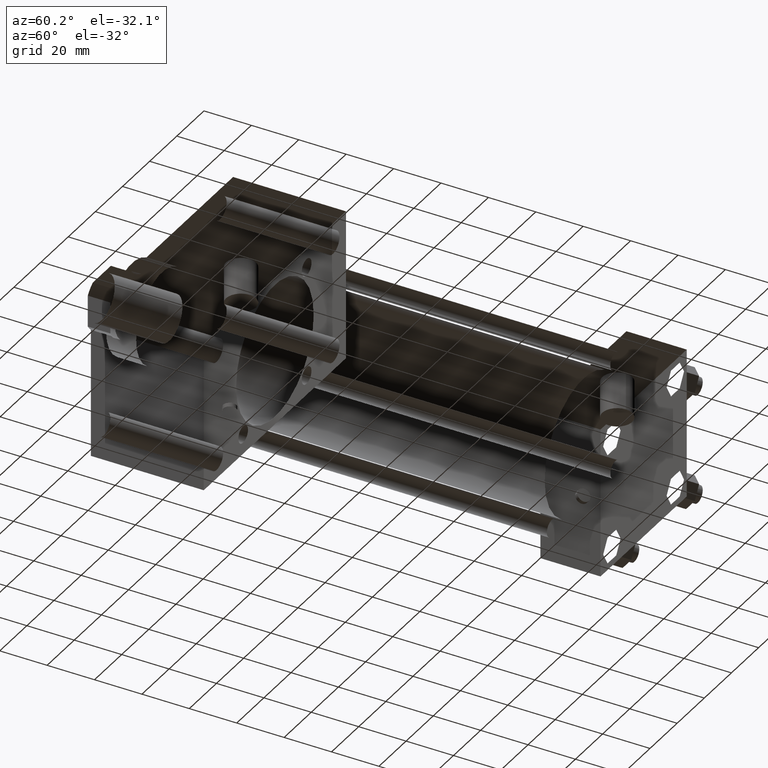
[diagram: clean part render]
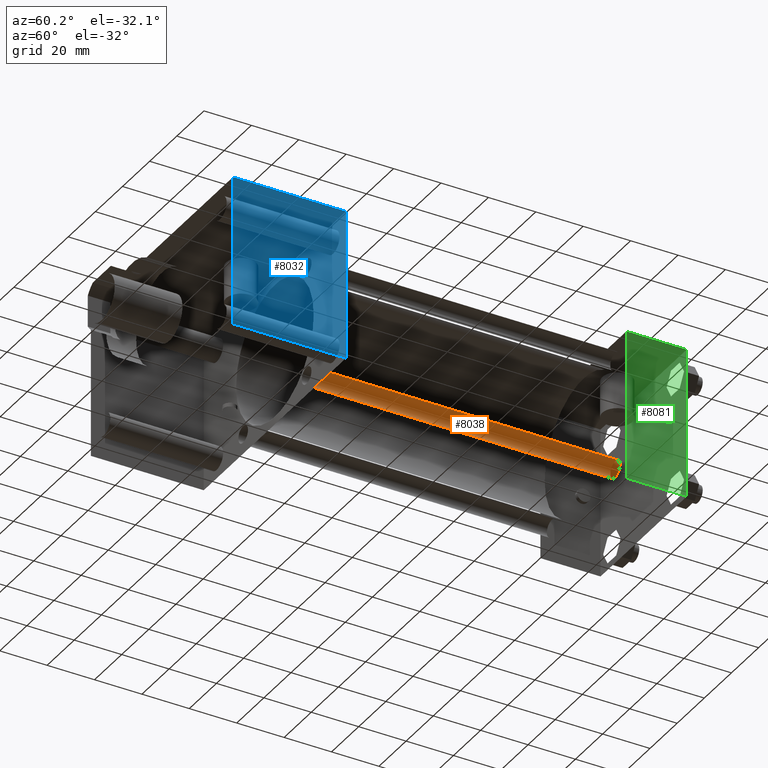
[diagram: same view with three faces highlighted in distinct colors, each labeled with its STEP entity id]
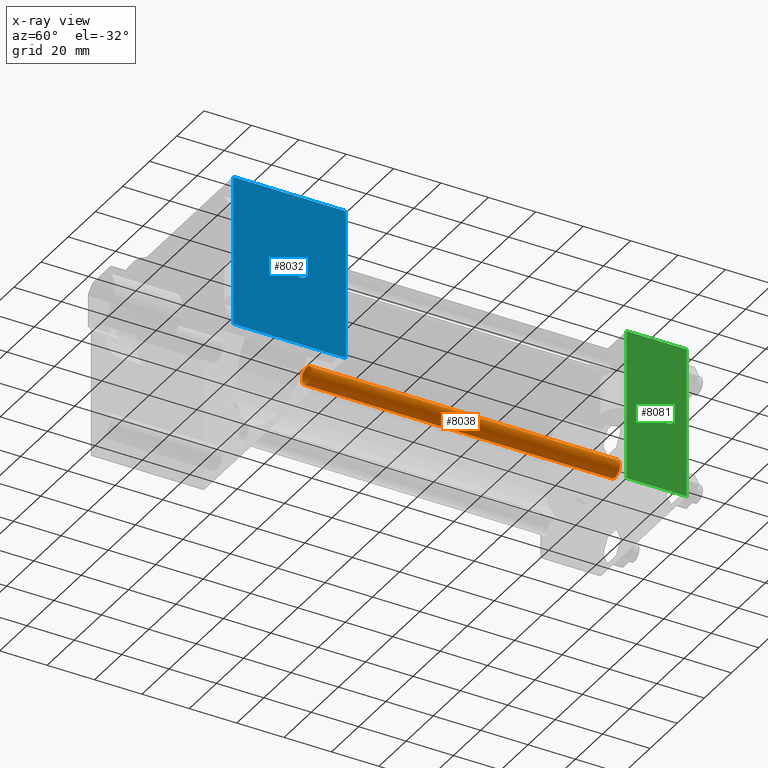
[diagram: x-ray of the same camera — body ghosted, the three highlighted faces saturated]
A machine part, auxiliary view with three faces highlighted in distinct colors.
The next image is the same camera in x-ray (body ghosted, the three faces saturated) — at least one of them is partly hidden behind the body in this view.
Their STEP definitions:

[orange] entity #8038 — the highlighted cylindrical surface (bore or boss wall) has radius 3.5687 mm, axis along (0, -1, 0).
#916=EDGE_CURVE('',#922,#922,#917,.T.);
#917=CIRCLE('',#918,3.568700000E+000);
#918=AXIS2_PLACEMENT_3D('',#919,#920,#921);
#919=CARTESIAN_POINT('',(2.336800000E+001,7.302500000E+001,-2.336800000E+001));
#920=DIRECTION('',(0.0E+000,1.0E+000,0.0E+000));
#921=DIRECTION('',(0.0E+000,0.0E+000,1.0E+000));
#922=VERTEX_POINT('',#923);
#923=CARTESIAN_POINT('',(2.336800000E+001,7.302500000E+001,-1.979930000E+001));
#1086=FACE_OUTER_BOUND('',#1088,.T.);
#1087=FACE_BOUND('',#1089,.T.);
#1088=EDGE_LOOP('',(#1090));
#1089=EDGE_LOOP('',(#1091));
#1090=ORIENTED_EDGE('',*,*,#1140,.F.);
#1091=ORIENTED_EDGE('',*,*,#916,.T.);
#1092=CYLINDRICAL_SURFACE('',#1093,3.568700000E+000);
#1093=AXIS2_PLACEMENT_3D('',#1094,#1095,#1096);
#1094=CARTESIAN_POINT('',(2.336800000E+001,2.032000000E+002,-2.336800000E+001));
#1095=DIRECTION('',(0.0E+000,-1.0E+000,0.0E+000));
#1096=DIRECTION('',(0.0E+000,0.0E+000,-1.0E+000));
#1140=EDGE_CURVE('',#1146,#1146,#1141,.T.);
#1141=CIRCLE('',#1142,3.568700000E+000);
#1142=AXIS2_PLACEMENT_3D('',#1143,#1144,#1145);
#1143=CARTESIAN_POINT('',(2.336800000E+001,2.032000000E+002,-2.336800000E+001));
#1144=DIRECTION('',(0.0E+000,1.0E+000,0.0E+000));
#1145=DIRECTION('',(1.0E+000,0.0E+000,0.0E+000));
#1146=VERTEX_POINT('',#1147);
#1147=CARTESIAN_POINT('',(2.693670000E+001,2.032000000E+002,-2.336800000E+001));
#8038=ADVANCED_FACE('',(#1086,#1087),#1092,.T.);

[blue] entity #8032 — the highlighted planar face has unit normal (1, 0, 0).
#526=EDGE_CURVE('',#532,#532,#527,.T.);
#527=CIRCLE('',#528,2.778125000E+000);
#528=AXIS2_PLACEMENT_3D('',#529,#530,#531);
#529=CARTESIAN_POINT('',(5.238750000E+001,5.397500000E+001,0.000000000E+000));
#530=DIRECTION('',(-1.0E+000,0.0E+000,0.0E+000));
#531=DIRECTION('',(0.0E+000,1.0E+000,0.0E+000));
#532=VERTEX_POINT('',#533);
#533=CARTESIAN_POINT('',(5.238750000E+001,5.675312500E+001,0.000000000E+000));
#744=VERTEX_POINT('',#746);
#746=CARTESIAN_POINT('',(5.238750000E+001,2.540000000E+001,-3.175000000E+001));
#747=EDGE_CURVE('',#744,#752,#748,.T.);
#748=LINE('',#749,#750);
#749=CARTESIAN_POINT('',(5.238750000E+001,2.540000000E+001,-3.175000000E+001));
#750=VECTOR('',#751,1.0E+000);
#751=DIRECTION('',(0.0E+000,0.0E+000,1.0E+000));
#752=VERTEX_POINT('',#753);
#753=CARTESIAN_POINT('',(5.238750000E+001,2.540000000E+001,3.175000000E+001));
#786=EDGE_CURVE('',#791,#752,#787,.T.);
#787=LINE('',#788,#789);
#788=CARTESIAN_POINT('',(5.238750000E+001,7.302500000E+001,3.175000000E+001));
#789=VECTOR('',#790,1.0E+000);
#790=DIRECTION('',(0.0E+000,-1.0E+000,0.0E+000));
#791=VERTEX_POINT('',#792);
#792=CARTESIAN_POINT('',(5.238750000E+001,7.302500000E+001,3.175000000E+001));
#812=EDGE_CURVE('',#817,#744,#813,.T.);
#813=LINE('',#814,#815);
#814=CARTESIAN_POINT('',(5.238750000E+001,7.302500000E+001,-3.175000000E+001));
#815=VECTOR('',#816,1.0E+000);
#816=DIRECTION('',(0.0E+000,-1.0E+000,0.0E+000));
#817=VERTEX_POINT('',#818);
#818=CARTESIAN_POINT('',(5.238750000E+001,7.302500000E+001,-3.175000000E+001));
#837=FACE_OUTER_BOUND('',#839,.T.);
#838=FACE_BOUND('',#840,.T.);
#839=EDGE_LOOP('',(#841,#842,#843,#844));
#840=EDGE_LOOP('',(#850));
#841=ORIENTED_EDGE('',*,*,#786,.T.);
#842=ORIENTED_EDGE('',*,*,#747,.F.);
#843=ORIENTED_EDGE('',*,*,#812,.F.);
#844=ORIENTED_EDGE('',*,*,#845,.T.);
#845=EDGE_CURVE('',#817,#791,#846,.T.);
#846=LINE('',#847,#848);
#847=CARTESIAN_POINT('',(5.238750000E+001,7.302500000E+001,-3.175000000E+001));
#848=VECTOR('',#849,1.0E+000);
#849=DIRECTION('',(0.0E+000,0.0E+000,1.0E+000));
#850=ORIENTED_EDGE('',*,*,#526,.T.);
#851=PLANE('',#852);
#852=AXIS2_PLACEMENT_3D('',#853,#854,#855);
#853=CARTESIAN_POINT('',(5.238750000E+001,7.302500000E+001,-3.175000000E+001));
#854=DIRECTION('',(1.0E+000,0.0E+000,0.0E+000));
#855=DIRECTION('',(0.0E+000,0.0E+000,-1.0E+000));
#8032=ADVANCED_FACE('',(#837,#838),#851,.T.);

[green] entity #8081 — the highlighted planar face has unit normal (1, 0, 0).
#2212=VERTEX_POINT('',#2214);
#2214=CARTESIAN_POINT('',(3.175000000E+001,2.286000000E+002,-3.175000000E+001));
#2227=VERTEX_POINT('',#2228);
#2228=CARTESIAN_POINT('',(3.175000000E+001,2.286000000E+002,3.175000000E+001));
#2229=EDGE_CURVE('',#2212,#2227,#2230,.T.);
#2230=LINE('',#2231,#2232);
#2231=CARTESIAN_POINT('',(3.175000000E+001,2.286000000E+002,-3.175000000E+001));
#2232=VECTOR('',#2233,1.0E+000);
#2233=DIRECTION('',(0.0E+000,0.0E+000,1.0E+000));
#2385=VERTEX_POINT('',#2387);
#2387=CARTESIAN_POINT('',(3.175000000E+001,2.032000000E+002,-3.175000000E+001));
#2388=EDGE_CURVE('',#2385,#2393,#2389,.T.);
#2389=LINE('',#2390,#2391);
#2390=CARTESIAN_POINT('',(3.175000000E+001,2.032000000E+002,-3.175000000E+001));
#2391=VECTOR('',#2392,1.0E+000);
#2392=DIRECTION('',(0.0E+000,0.0E+000,1.0E+000));
#2393=VERTEX_POINT('',#2394);
#2394=CARTESIAN_POINT('',(3.175000000E+001,2.032000000E+002,3.175000000E+001));
#2434=EDGE_CURVE('',#2212,#2385,#2435,.T.);
#2435=LINE('',#2436,#2437);
#2436=CARTESIAN_POINT('',(3.175000000E+001,2.286000000E+002,-3.175000000E+001));
#2437=VECTOR('',#2438,1.0E+000);
#2438=DIRECTION('',(0.0E+000,-1.0E+000,0.0E+000));
#2461=EDGE_CURVE('',#2227,#2393,#2462,.T.);
#2462=LINE('',#2463,#2464);
#2463=CARTESIAN_POINT('',(3.175000000E+001,2.286000000E+002,3.175000000E+001));
#2464=VECTOR('',#2465,1.0E+000);
#2465=DIRECTION('',(0.0E+000,-1.0E+000,0.0E+000));
#2507=FACE_OUTER_BOUND('',#2509,.T.);
#2508=FACE_BOUND('',#2510,.T.);
#2509=EDGE_LOOP('',(#2511,#2512,#2513,#2514));
#2510=EDGE_LOOP('',(#2515));
#2511=ORIENTED_EDGE('',*,*,#2388,.F.);
#2512=ORIENTED_EDGE('',*,*,#2434,.F.);
#2513=ORIENTED_EDGE('',*,*,#2229,.T.);
#2514=ORIENTED_EDGE('',*,*,#2461,.T.);
#2515=ORIENTED_EDGE('',*,*,#2516,.T.);
#2516=EDGE_CURVE('',#2522,#2522,#2517,.T.);
#2517=CIRCLE('',#2518,2.778125000E+000);
#2518=AXIS2_PLACEMENT_3D('',#2519,#2520,#2521);
#2519=CARTESIAN_POINT('',(3.175000000E+001,2.206625000E+002,0.000000000E+000));
#2520=DIRECTION('',(-1.0E+000,0.0E+000,0.0E+000));
#2521=DIRECTION('',(0.0E+000,1.0E+000,0.0E+000));
#2522=VERTEX_POINT('',#2523);
#2523=CARTESIAN_POINT('',(3.175000000E+001,2.234406250E+002,0.000000000E+000));
#2524=PLANE('',#2525);
#2525=AXIS2_PLACEMENT_3D('',#2526,#2527,#2528);
#2526=CARTESIAN_POINT('',(3.175000000E+001,2.286000000E+002,-3.175000000E+001));
#2527=DIRECTION('',(1.0E+000,0.0E+000,0.0E+000));
#2528=DIRECTION('',(0.0E+000,0.0E+000,-1.0E+000));
#8081=ADVANCED_FACE('',(#2507,#2508),#2524,.T.);